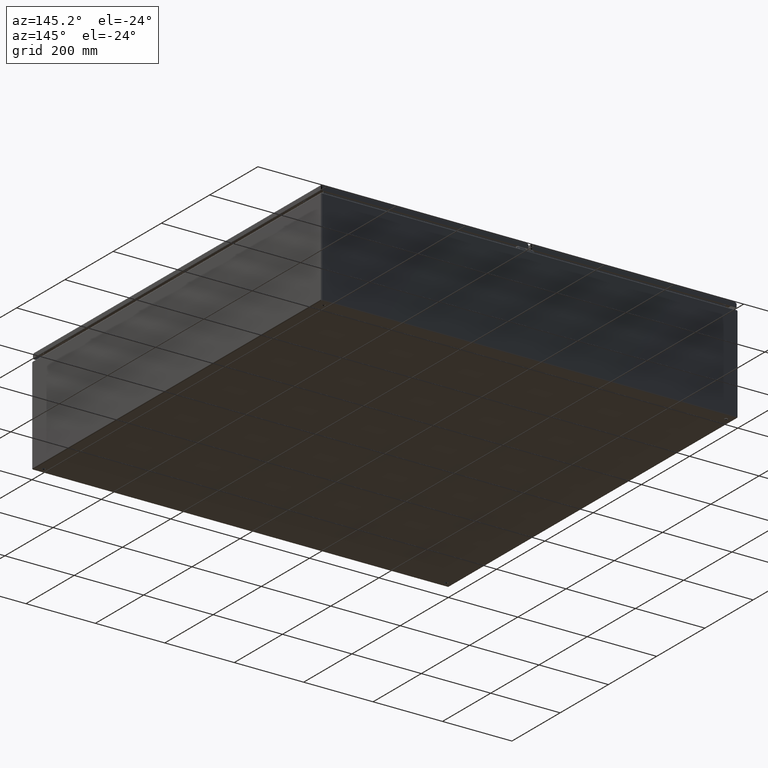
[diagram: clean part render]
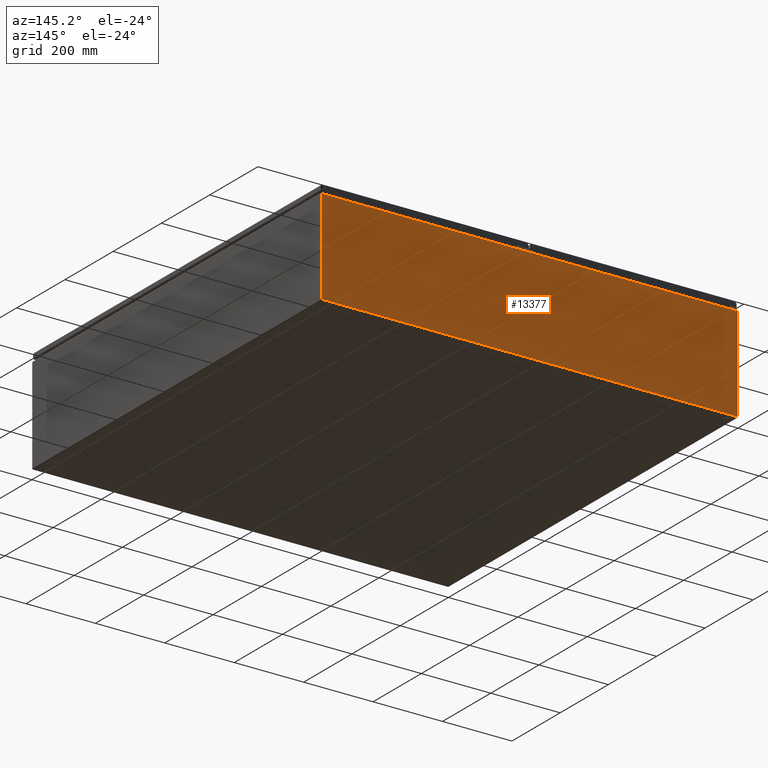
[diagram: same view with one face highlighted and labeled with its STEP entity id]
A machine part, auxiliary view. The second image highlights one B-rep face of the part: STEP entity #13377.
In plain terms, the highlighted planar face has unit normal (0, 1, 0).
Its self-contained STEP definition (entity closure, byte-faithful):
#6990 = AXIS2_PLACEMENT_3D ( 'NONE', #42289, #41682, #41311 ) ;
#7228 = AXIS2_PLACEMENT_3D ( 'NONE', #41362, #41762, #41382 ) ;
#13377 = ADVANCED_FACE ( 'NONE', ( #87581 ), #97312, .T. ) ;
#19229 = ORIENTED_EDGE ( 'NONE', *, *, #96985, .T. ) ;
#19522 = ORIENTED_EDGE ( 'NONE', *, *, #96988, .T. ) ;
#19542 = ORIENTED_EDGE ( 'NONE', *, *, #95972, .T. ) ;
#19546 = ORIENTED_EDGE ( 'NONE', *, *, #97002, .T. ) ;
#20229 = ORIENTED_EDGE ( 'NONE', *, *, #97009, .T. ) ;
#21369 = ORIENTED_EDGE ( 'NONE', *, *, #96991, .F. ) ;
#22535 = VERTEX_POINT ( 'NONE', #53137 ) ;
#22574 = VERTEX_POINT ( 'NONE', #53270 ) ;
#22604 = VERTEX_POINT ( 'NONE', #53099 ) ;
#27369 = CARTESIAN_POINT ( 'NONE',  ( -598.4992928932131200, 600.0000000000006800, 3.000000000000002700 ) ) ;
#28511 = CARTESIAN_POINT ( 'NONE',  ( 598.4992928932255200, 600.0000000000005700, 3.000000000000002700 ) ) ;
#41311 = DIRECTION ( 'NONE',  ( -1.000000000000000000, 0.0000000000000000000, 0.0000000000000000000 ) ) ;
#41362 = CARTESIAN_POINT ( 'NONE',  ( 593.4992928932174400, 600.0000000000005700, 276.5018117420096900 ) ) ;
#41382 = DIRECTION ( 'NONE',  ( -1.000000000000000000, 0.0000000000000000000, 0.0000000000000000000 ) ) ;
#41389 = CARTESIAN_POINT ( 'NONE',  ( 6583.492221825416900, 600.0000000000001100, 277.0000000000000000 ) ) ;
#41502 = DIRECTION ( 'NONE',  ( -1.000000000000000000, 9.275057112082803200E-017, 0.0000000000000000000 ) ) ;
#41682 = DIRECTION ( 'NONE',  ( 6.123233995736766000E-017, 1.000000000000000000, 0.0000000000000000000 ) ) ;
#41762 = DIRECTION ( 'NONE',  ( 6.123233995736766000E-017, 1.000000000000000000, 0.0000000000000000000 ) ) ;
#41938 = CARTESIAN_POINT ( 'NONE',  ( -598.4992928932131200, 600.0000000000006800, 278.5000000000000000 ) ) ;
#42127 = DIRECTION ( 'NONE',  ( -0.0000000000000000000, -0.0000000000000000000, 1.000000000000000000 ) ) ;
#42289 = CARTESIAN_POINT ( 'NONE',  ( -593.4992928932418900, 600.0000000000006800, 276.5018117420097500 ) ) ;
#44867 = DIRECTION ( 'NONE',  ( 0.0000000000000000000, 0.0000000000000000000, -1.000000000000000000 ) ) ;
#44868 = CARTESIAN_POINT ( 'NONE',  ( 598.4992928932255200, 600.0000000000005700, 278.5000000000000000 ) ) ;
#53099 = CARTESIAN_POINT ( 'NONE',  ( 598.4744118324655300, 600.0000000000005700, 277.0000000000000000 ) ) ;
#53137 = CARTESIAN_POINT ( 'NONE',  ( -598.4744118324564400, 600.0000000000005700, 277.0000000000000000 ) ) ;
#53270 = CARTESIAN_POINT ( 'NONE',  ( 598.4992928932239200, 600.0000000000005700, 276.5018117420096900 ) ) ;
#54134 = CARTESIAN_POINT ( 'NONE',  ( 6583.500000000004500, 600.0000000000002300, 3.000000000000002700 ) ) ;
#54815 = DIRECTION ( 'NONE',  ( -1.000000000000000000, 6.123233995736766000E-017, 0.0000000000000000000 ) ) ;
#58254 = VERTEX_POINT ( 'NONE', #28511 ) ;
#58286 = VERTEX_POINT ( 'NONE', #27369 ) ;
#58740 = VERTEX_POINT ( 'NONE', #66659 ) ;
#64309 = LINE ( 'NONE', #41389, #64318 ) ;
#64318 = VECTOR ( 'NONE', #41502, 1000.000000000000000 ) ;
#64320 = CIRCLE ( 'NONE', #7228, 5.000000000006443700 ) ;
#64323 = CIRCLE ( 'NONE', #6990, 4.999999999973026000 ) ;
#64336 = LINE ( 'NONE', #41938, #64337 ) ;
#64337 = VECTOR ( 'NONE', #42127, 1000.000000000000000 ) ;
#64345 = LINE ( 'NONE', #54134, #64347 ) ;
#64347 = VECTOR ( 'NONE', #54815, 1000.000000000000000 ) ;
#66659 = CARTESIAN_POINT ( 'NONE',  ( -598.4992928932131200, 600.0000000000006800, 276.5018117420098100 ) ) ;
#83964 = EDGE_LOOP ( 'NONE', ( #19229, #19542, #20229, #19546, #19522, #21369 ) ) ;
#87581 = FACE_OUTER_BOUND ( 'NONE', #83964, .T. ) ;
#92346 = LINE ( 'NONE', #44868, #92349 ) ;
#92349 = VECTOR ( 'NONE', #44867, 1000.000000000000000 ) ;
#93749 = AXIS2_PLACEMENT_3D ( 'NONE', #97319, #97091, #96892 ) ;
#95972 = EDGE_CURVE ( 'NONE', #22574, #58254, #92346, .T. ) ;
#96892 = DIRECTION ( 'NONE',  ( 0.0000000000000000000, 0.0000000000000000000, -1.000000000000000000 ) ) ;
#96985 = EDGE_CURVE ( 'NONE', #22604, #22574, #64320, .T. ) ;
#96988 = EDGE_CURVE ( 'NONE', #58740, #22535, #64323, .T. ) ;
#96991 = EDGE_CURVE ( 'NONE', #22604, #22535, #64309, .T. ) ;
#97002 = EDGE_CURVE ( 'NONE', #58286, #58740, #64336, .T. ) ;
#97009 = EDGE_CURVE ( 'NONE', #58254, #58286, #64345, .T. ) ;
#97091 = DIRECTION ( 'NONE',  ( 6.123233995736766000E-017, 1.000000000000000000, 0.0000000000000000000 ) ) ;
#97312 = PLANE ( 'NONE',  #93749 ) ;
#97319 = CARTESIAN_POINT ( 'NONE',  ( 6583.500000000004500, 600.0000000000002300, 278.5000000000000000 ) ) ;